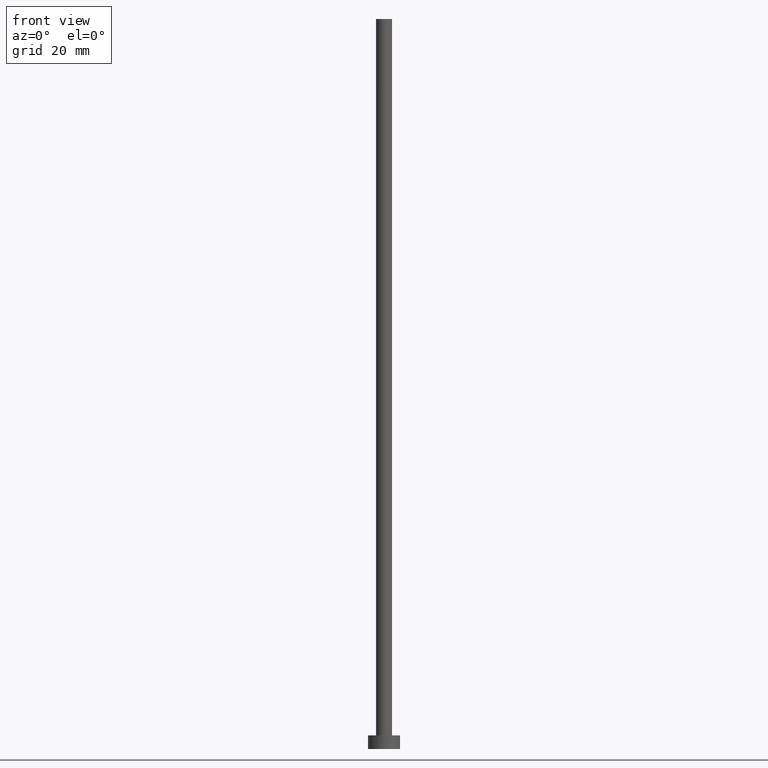
[diagram: clean part render]
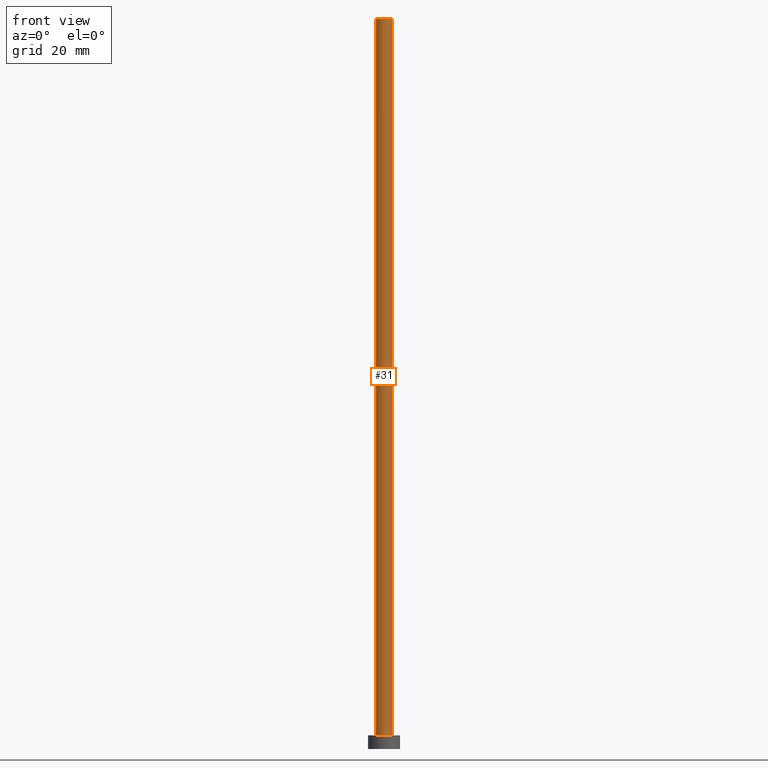
[diagram: same view with one face highlighted and labeled with its STEP entity id]
A machine part, front view. The second image highlights one B-rep face of the part: STEP entity #31.
In plain terms, the highlighted cylindrical surface (edge-blend (fillet) strip) has radius 1.75 mm, axis along (-0, -0, -1).
Its self-contained STEP definition (entity closure, byte-faithful):
#9 = LINE ( 'NONE', #78, #168 ) ;
#11 = LINE ( 'NONE', #80, #85 ) ;
#20 = AXIS2_PLACEMENT_3D ( 'NONE', #156, #57, #243 ) ;
#26 = CARTESIAN_POINT ( 'NONE',  ( 1.750000000000000000, 2.143131898507868297E-16, 160.0000000000000000 ) ) ;
#31 = ADVANCED_FACE ( 'NONE', ( #137 ), #121, .T. ) ;
#34 = EDGE_LOOP ( 'NONE', ( #91, #237, #254, #171 ) ) ;
#46 = CARTESIAN_POINT ( 'NONE',  ( -1.750000000000000000, 0.000000000000000000, 160.0000000000000000 ) ) ;
#55 = CIRCLE ( 'NONE', #141, 1.750000000000000000 ) ;
#57 = DIRECTION ( 'NONE',  ( -0.000000000000000000, -0.000000000000000000, -1.000000000000000000 ) ) ;
#61 = CARTESIAN_POINT ( 'NONE',  ( 1.750000000000000000, 2.143131898507868297E-16, 3.000000000000000000 ) ) ;
#71 = VERTEX_POINT ( 'NONE', #46 ) ;
#73 = DIRECTION ( 'NONE',  ( 0.000000000000000000, 0.000000000000000000, 1.000000000000000000 ) ) ;
#76 = AXIS2_PLACEMENT_3D ( 'NONE', #203, #73, #117 ) ;
#78 = CARTESIAN_POINT ( 'NONE',  ( -1.750000000000000000, 0.000000000000000000, 160.0000000000000000 ) ) ;
#79 = EDGE_CURVE ( 'NONE', #71, #152, #198, .T. ) ;
#80 = CARTESIAN_POINT ( 'NONE',  ( 1.750000000000000000, 2.143131898507868297E-16, 160.0000000000000000 ) ) ;
#85 = VECTOR ( 'NONE', #161, 1000.000000000000000 ) ;
#91 = ORIENTED_EDGE ( 'NONE', *, *, #188, .F. ) ;
#105 = DIRECTION ( 'NONE',  ( 0.000000000000000000, 0.000000000000000000, 1.000000000000000000 ) ) ;
#112 = VERTEX_POINT ( 'NONE', #134 ) ;
#117 = DIRECTION ( 'NONE',  ( 1.000000000000000000, 0.000000000000000000, 0.000000000000000000 ) ) ;
#121 = CYLINDRICAL_SURFACE ( 'NONE', #20, 1.750000000000000000 ) ;
#134 = CARTESIAN_POINT ( 'NONE',  ( -1.750000000000000000, 0.000000000000000000, 3.000000000000000000 ) ) ;
#137 = FACE_OUTER_BOUND ( 'NONE', #34, .T. ) ;
#141 = AXIS2_PLACEMENT_3D ( 'NONE', #210, #105, #214 ) ;
#146 = EDGE_CURVE ( 'NONE', #71, #112, #9, .T. ) ;
#150 = VERTEX_POINT ( 'NONE', #61 ) ;
#152 = VERTEX_POINT ( 'NONE', #26 ) ;
#156 = CARTESIAN_POINT ( 'NONE',  ( 0.000000000000000000, 0.000000000000000000, 160.0000000000000000 ) ) ;
#159 = DIRECTION ( 'NONE',  ( -0.000000000000000000, -0.000000000000000000, -1.000000000000000000 ) ) ;
#161 = DIRECTION ( 'NONE',  ( -0.000000000000000000, -0.000000000000000000, -1.000000000000000000 ) ) ;
#168 = VECTOR ( 'NONE', #159, 1000.000000000000000 ) ;
#171 = ORIENTED_EDGE ( 'NONE', *, *, #215, .T. ) ;
#188 = EDGE_CURVE ( 'NONE', #152, #150, #11, .T. ) ;
#198 = CIRCLE ( 'NONE', #76, 1.750000000000000000 ) ;
#203 = CARTESIAN_POINT ( 'NONE',  ( 0.000000000000000000, 0.000000000000000000, 160.0000000000000000 ) ) ;
#210 = CARTESIAN_POINT ( 'NONE',  ( 0.000000000000000000, 0.000000000000000000, 3.000000000000000000 ) ) ;
#214 = DIRECTION ( 'NONE',  ( 1.000000000000000000, 0.000000000000000000, 0.000000000000000000 ) ) ;
#215 = EDGE_CURVE ( 'NONE', #112, #150, #55, .T. ) ;
#237 = ORIENTED_EDGE ( 'NONE', *, *, #79, .F. ) ;
#243 = DIRECTION ( 'NONE',  ( -1.000000000000000000, 0.000000000000000000, 0.000000000000000000 ) ) ;
#254 = ORIENTED_EDGE ( 'NONE', *, *, #146, .T. ) ;